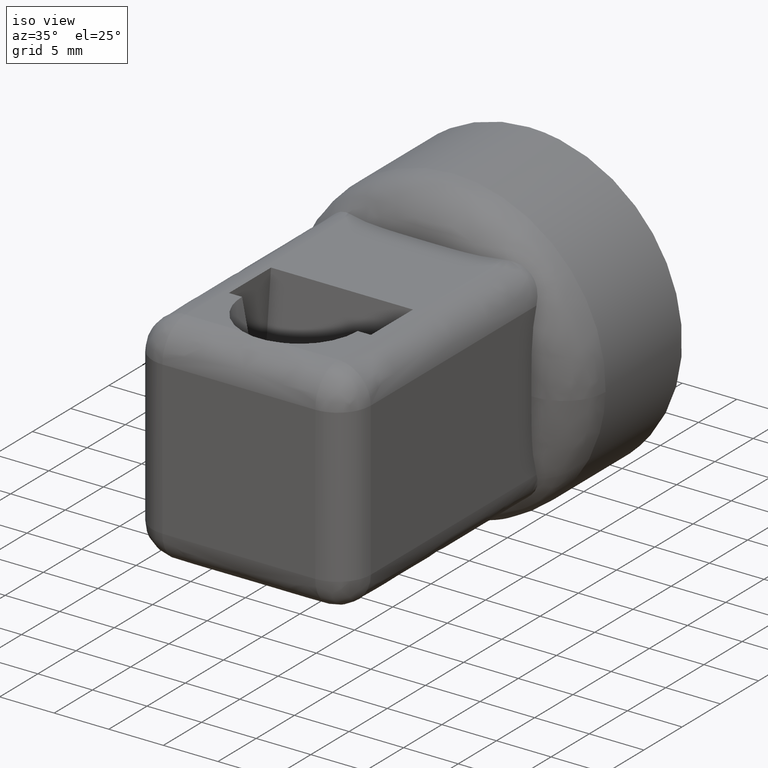
[diagram: clean part render]
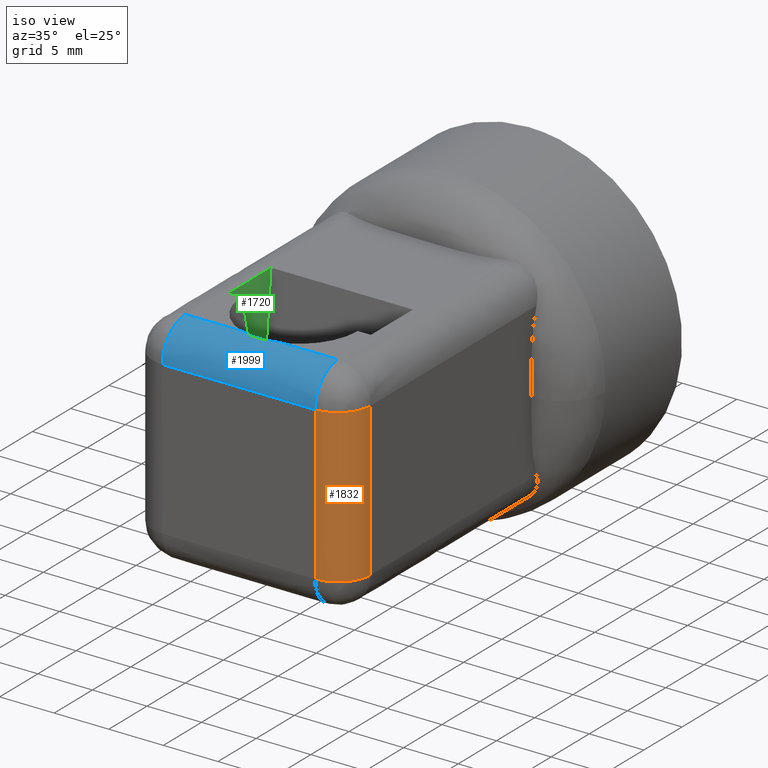
[diagram: same view with three faces highlighted in distinct colors, each labeled with its STEP entity id]
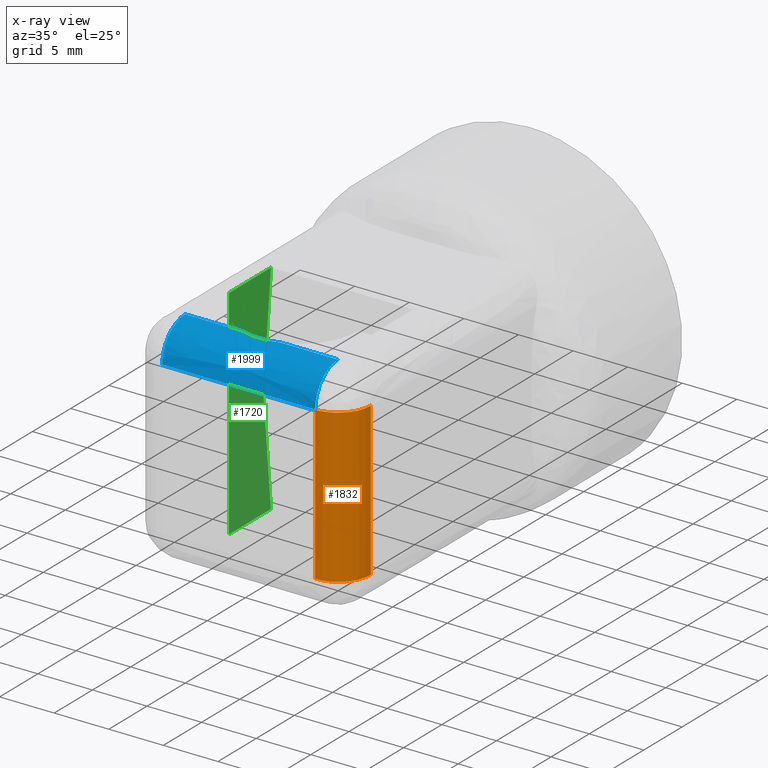
[diagram: x-ray of the same camera — body ghosted, the three highlighted faces saturated]
A machine part, iso view with three faces highlighted in distinct colors.
The next image is the same camera in x-ray (body ghosted, the three faces saturated) — at least one of them is partly hidden behind the body in this view.
Their STEP definitions:

[orange] entity #1832 — the highlighted face is a freeform B-spline surface patch.
#1770=CARTESIAN_POINT('',(6.869142312878472,-7.997146184664072,7.350000498723126));
#1771=CARTESIAN_POINT('',(6.869142312878472,-7.997146184664072,-7.358750499317053));
#1772=CARTESIAN_POINT('',(10.228181268351587,-8.143804992726487,7.350000498723125));
#1773=CARTESIAN_POINT('',(10.228181268351587,-8.143804992726487,-7.358750499317055));
#1774=CARTESIAN_POINT('',(9.992629214670265,-4.789827243787964,7.350000498723125));
#1775=CARTESIAN_POINT('',(9.992629214670265,-4.789827243787964,-7.358750499317052));
#1783=(BOUNDED_SURFACE()B_SPLINE_SURFACE(1,2,((#1770,#1772,#1774),(#1771,#1773,#1775)),.UNSPECIFIED.,.F.,.F.,.U.)B_SPLINE_SURFACE_WITH_KNOTS((2,2),(3,3),(0.0,14.708750998040180),(0.0,5.375227619525957),.UNSPECIFIED.)GEOMETRIC_REPRESENTATION_ITEM()RATIONAL_B_SPLINE_SURFACE(((1.0,0.664513898535122,0.996233561259061),(1.0,0.664513898535122,0.996233561259061)))REPRESENTATION_ITEM('')SURFACE());
#1784=CARTESIAN_POINT('',(7.000000332482120,-8.000001519918500,-7.000000474974610));
#1785=VERTEX_POINT('',#1784);
#1786=CARTESIAN_POINT('',(10.000000474974479,-5.000001519918531,-7.000000332482180));
#1787=VERTEX_POINT('',#1786);
#1788=CARTESIAN_POINT('',(7.000000332482120,-8.000001519918500,-7.000000474974610));
#1789=CARTESIAN_POINT('',(10.000000332482120,-8.000001519918511,-7.000000332482199));
#1790=CARTESIAN_POINT('',(10.000000474974479,-5.000001519918531,-7.000000332482180));
#1798=(BOUNDED_CURVE()B_SPLINE_CURVE(2,(#1788,#1789,#1790),.UNSPECIFIED.,.F.,.U.)CURVE()GEOMETRIC_REPRESENTATION_ITEM()QUASI_UNIFORM_CURVE()RATIONAL_B_SPLINE_CURVE((1.0,0.707106781186548,1.0))REPRESENTATION_ITEM(''));
#1799=EDGE_CURVE('',#1785,#1787,#1798,.T.);
#1800=ORIENTED_EDGE('',*,*,#1799,.T.);
#1801=CARTESIAN_POINT('',(10.000000474974501,-5.000001519918531,7.000000332482100));
#1802=VERTEX_POINT('',#1801);
#1803=CARTESIAN_POINT('',(10.000000474974501,-5.000001519918531,7.000000332482100));
#1804=CARTESIAN_POINT('',(10.000000474974479,-5.000001519918531,-7.000000332482180));
#1805=QUASI_UNIFORM_CURVE('',1,(#1803,#1804),.UNSPECIFIED.,.F.,.U.);
#1806=EDGE_CURVE('',#1802,#1787,#1805,.T.);
#1807=ORIENTED_EDGE('',*,*,#1806,.F.);
#1808=CARTESIAN_POINT('',(7.000000332482120,-8.000001519918500,7.000000474974400));
#1809=VERTEX_POINT('',#1808);
#1810=CARTESIAN_POINT('',(10.000000474974501,-5.000001519918531,7.000000332482100));
#1811=CARTESIAN_POINT('',(10.000000474974470,-6.242642248772858,7.000000332482100));
#1812=CARTESIAN_POINT('',(9.121320768155458,-7.121321913856825,7.000000332482100));
#1813=CARTESIAN_POINT('',(8.242641061336448,-8.000001578940793,7.000000332482100));
#1814=CARTESIAN_POINT('',(7.000000332482120,-8.000001519918500,7.000000474974400));
#1822=(BOUNDED_CURVE()B_SPLINE_CURVE(2,(#1810,#1811,#1812,#1813,#1814),.UNSPECIFIED.,.F.,.U.)B_SPLINE_CURVE_WITH_KNOTS((3,2,3),(0.0,0.500000000000000,1.0),.UNSPECIFIED.)CURVE()GEOMETRIC_REPRESENTATION_ITEM()RATIONAL_B_SPLINE_CURVE((1.0,0.923879527967165,1.0,0.923879527967165,1.0))REPRESENTATION_ITEM(''));
#1823=EDGE_CURVE('',#1802,#1809,#1822,.T.);
#1824=ORIENTED_EDGE('',*,*,#1823,.T.);
#1825=CARTESIAN_POINT('',(7.000000332482120,-8.000001519918500,-7.000000474974610));
#1826=CARTESIAN_POINT('',(7.000000332482120,-8.000001519918500,7.000000474974400));
#1827=QUASI_UNIFORM_CURVE('',1,(#1825,#1826),.UNSPECIFIED.,.F.,.U.);
#1828=EDGE_CURVE('',#1785,#1809,#1827,.T.);
#1829=ORIENTED_EDGE('',*,*,#1828,.F.);
#1830=EDGE_LOOP('',(#1800,#1807,#1824,#1829));
#1831=FACE_OUTER_BOUND('',#1830,.T.);
#1832=ADVANCED_FACE('',(#1831),#1783,.T.);

[blue] entity #1999 — the highlighted face is a freeform B-spline surface patch.
#1475=CARTESIAN_POINT('',(-1.757839455858930,-5.000001519918500,10.000000474974399));
#1476=VERTEX_POINT('',#1475);
#1477=CARTESIAN_POINT('',(1.757839455858930,-5.000001519918500,10.000000474974399));
#1478=VERTEX_POINT('',#1477);
#1479=CARTESIAN_POINT('',(-1.757839455858930,-5.000001519918500,10.000000474974399));
#1480=CARTESIAN_POINT('',(-1.473978451950759,-5.099797904111961,10.000000474974399));
#1481=CARTESIAN_POINT('',(-1.185028932537675,-5.173250342881901,9.995400432272698));
#1482=CARTESIAN_POINT('',(-0.744510742568819,-5.247081167455264,9.989910283393929));
#1483=CARTESIAN_POINT('',(-0.596479399558488,-5.265580783971751,9.988247765570549));
#1484=CARTESIAN_POINT('',(-0.372632577185761,-5.284128180370039,9.986521962363081));
#1485=CARTESIAN_POINT('',(-0.297575697439915,-5.288779040533688,9.986070991649457));
#1486=CARTESIAN_POINT('',(-0.147547025251131,-5.294942231735925,9.985468539362513));
#1487=CARTESIAN_POINT('',(-0.072714700397822,-5.296455632001472,9.985317034428045));
#1488=CARTESIAN_POINT('',(0.300552922847378,-5.296322213612041,9.985330282214063));
#1489=CARTESIAN_POINT('',(0.596330067630433,-5.271797177846917,9.988066644077676));
#1490=CARTESIAN_POINT('',(1.035753837996137,-5.198327742832195,9.993538479903828));
#1491=CARTESIAN_POINT('',(1.181516859405017,-5.167681489310600,9.995540776966221));
#1492=CARTESIAN_POINT('',(1.471561693254423,-5.093501671258464,9.998772889595420));
#1493=CARTESIAN_POINT('',(1.615925098823491,-5.049894035982002,10.000000474974410));
#1494=CARTESIAN_POINT('',(1.757839455858930,-5.000001519918500,10.000000474974399));
#1495=B_SPLINE_CURVE_WITH_KNOTS('',3,(#1479,#1480,#1481,#1482,#1483,#1484,#1485,#1486,#1487,#1488,#1489,#1490,#1491,#1492,#1493,#1494),.UNSPECIFIED.,.F.,.U.,(4,2,2,2,2,2,2,4),(0.0,0.250000000000000,0.375000000000000,0.437500000000000,0.500000000000000,0.750000000000000,0.875000000000000,1.0),.UNSPECIFIED.);
#1496=EDGE_CURVE('',#1476,#1478,#1495,.T.);
#1808=CARTESIAN_POINT('',(7.000000332482120,-8.000001519918500,7.000000474974400));
#1809=VERTEX_POINT('',#1808);
#1857=CARTESIAN_POINT('',(7.000000332482120,-5.000001519918531,10.000000474974399));
#1858=VERTEX_POINT('',#1857);
#1872=CARTESIAN_POINT('',(7.000000332482120,-5.000001519918531,10.000000474974399));
#1873=CARTESIAN_POINT('',(7.000000332482119,-8.000001519918500,10.000000474974401));
#1874=CARTESIAN_POINT('',(7.000000332482120,-8.000001519918500,7.000000474974400));
#1882=(BOUNDED_CURVE()B_SPLINE_CURVE(2,(#1872,#1873,#1874),.UNSPECIFIED.,.F.,.U.)CURVE()GEOMETRIC_REPRESENTATION_ITEM()QUASI_UNIFORM_CURVE()RATIONAL_B_SPLINE_CURVE((1.0,0.707106781186548,1.0))REPRESENTATION_ITEM(''));
#1883=EDGE_CURVE('',#1858,#1809,#1882,.T.);
#1947=CARTESIAN_POINT('',(-7.350000349106268,-7.998973494845171,6.921469630050780));
#1948=CARTESIAN_POINT('',(7.358750349521830,-7.998973494845171,6.921469630050780));
#1949=CARTESIAN_POINT('',(-7.350000349106268,-8.085478308530439,10.224955186467344));
#1950=CARTESIAN_POINT('',(7.358750349521831,-8.085478308530439,10.224955186467344));
#1951=CARTESIAN_POINT('',(-7.350000349106268,-4.789041013679104,9.992573893423344));
#1952=CARTESIAN_POINT('',(7.358750349521830,-4.789041013679104,9.992573893423344));
#1960=(BOUNDED_SURFACE()B_SPLINE_SURFACE(1,2,((#1947,#1949,#1951),(#1948,#1950,#1952)),.UNSPECIFIED.,.F.,.F.,.U.)B_SPLINE_SURFACE_WITH_KNOTS((2,2),(3,3),(0.0,14.708750698628100),(0.0,5.313427367344773),.UNSPECIFIED.)GEOMETRIC_REPRESENTATION_ITEM()RATIONAL_B_SPLINE_SURFACE(((1.0,0.670944202448334,0.996392689567979),(1.0,0.670944202448334,0.996392689567979)))REPRESENTATION_ITEM('')SURFACE());
#1961=ORIENTED_EDGE('',*,*,#1496,.F.);
#1962=CARTESIAN_POINT('',(-7.000000332482160,-5.000001519918531,10.000000474974399));
#1963=VERTEX_POINT('',#1962);
#1964=CARTESIAN_POINT('',(-7.000000332482160,-5.000001519918531,10.000000474974399));
#1965=CARTESIAN_POINT('',(-1.757839455858930,-5.000001519918500,10.000000474974399));
#1966=QUASI_UNIFORM_CURVE('',1,(#1964,#1965),.UNSPECIFIED.,.F.,.U.);
#1967=EDGE_CURVE('',#1963,#1476,#1966,.T.);
#1968=ORIENTED_EDGE('',*,*,#1967,.F.);
#1969=CARTESIAN_POINT('',(-7.000000332482160,-8.000001519918500,7.000000474974400));
#1970=VERTEX_POINT('',#1969);
#1971=CARTESIAN_POINT('',(-7.000000332482160,-5.000001519918531,10.000000474974399));
#1972=CARTESIAN_POINT('',(-7.000000332482160,-6.242642207037830,10.000000474974451));
#1973=CARTESIAN_POINT('',(-7.000000332482160,-7.121321863478190,9.121320818534077));
#1974=CARTESIAN_POINT('',(-7.000000332482160,-8.000001519918531,8.242641162093721));
#1975=CARTESIAN_POINT('',(-7.000000332482160,-8.000001519918500,7.000000474974400));
#1983=(BOUNDED_CURVE()B_SPLINE_CURVE(2,(#1971,#1972,#1973,#1974,#1975),.UNSPECIFIED.,.F.,.U.)B_SPLINE_CURVE_WITH_KNOTS((3,2,3),(0.0,0.500000000000000,1.0),.UNSPECIFIED.)CURVE()GEOMETRIC_REPRESENTATION_ITEM()RATIONAL_B_SPLINE_CURVE((1.0,0.923879532511285,1.0,0.923879532511285,1.0))REPRESENTATION_ITEM(''));
#1984=EDGE_CURVE('',#1963,#1970,#1983,.T.);
#1985=ORIENTED_EDGE('',*,*,#1984,.T.);
#1986=CARTESIAN_POINT('',(7.000000332482120,-8.000001519918500,7.000000474974400));
#1987=CARTESIAN_POINT('',(-7.000000332482160,-8.000001519918500,7.000000474974400));
#1988=QUASI_UNIFORM_CURVE('',1,(#1986,#1987),.UNSPECIFIED.,.F.,.U.);
#1989=EDGE_CURVE('',#1809,#1970,#1988,.T.);
#1990=ORIENTED_EDGE('',*,*,#1989,.F.);
#1991=ORIENTED_EDGE('',*,*,#1883,.F.);
#1992=CARTESIAN_POINT('',(1.757839455858930,-5.000001519918500,10.000000474974399));
#1993=CARTESIAN_POINT('',(7.000000332482120,-5.000001519918531,10.000000474974399));
#1994=QUASI_UNIFORM_CURVE('',1,(#1992,#1993),.UNSPECIFIED.,.F.,.U.);
#1995=EDGE_CURVE('',#1478,#1858,#1994,.T.);
#1996=ORIENTED_EDGE('',*,*,#1995,.F.);
#1997=EDGE_LOOP('',(#1961,#1968,#1985,#1990,#1991,#1996));
#1998=FACE_OUTER_BOUND('',#1997,.T.);
#1999=ADVANCED_FACE('',(#1998),#1960,.T.);

[green] entity #1720 — the highlighted face is a freeform B-spline surface patch.
#1642=CARTESIAN_POINT('',(-6.500000308733430,4.500000213738500,-5.510729E-016));
#1643=VERTEX_POINT('',#1642);
#1649=CARTESIAN_POINT('',(-6.500000308733430,5.500000261236011,-10.000000474974399));
#1650=VERTEX_POINT('',#1649);
#1651=CARTESIAN_POINT('',(-6.500000308733430,4.500000213738500,-5.510729E-016));
#1652=CARTESIAN_POINT('',(-6.500000308733430,5.500000261236011,-10.000000474974399));
#1653=QUASI_UNIFORM_CURVE('',1,(#1651,#1652),.UNSPECIFIED.,.F.,.U.);
#1654=EDGE_CURVE('',#1643,#1650,#1653,.T.);
#1676=CARTESIAN_POINT('',(-6.500000308733430,5.500000261236011,10.000000474974399));
#1677=VERTEX_POINT('',#1676);
#1683=CARTESIAN_POINT('',(-6.500000308733430,4.500000213738500,-5.510729E-016));
#1684=CARTESIAN_POINT('',(-6.500000308733430,5.500000261236011,10.000000474974399));
#1685=QUASI_UNIFORM_CURVE('',1,(#1683,#1684),.UNSPECIFIED.,.F.,.U.);
#1686=EDGE_CURVE('',#1643,#1677,#1685,.T.);
#1692=CARTESIAN_POINT('',(-6.500000308733460,-0.274725002388671,-10.999000036715220));
#1693=CARTESIAN_POINT('',(-6.500000308733460,5.774725411146185,-10.999000036715220));
#1694=CARTESIAN_POINT('',(-6.500000308733460,-0.274725002388671,10.998999500273190));
#1695=CARTESIAN_POINT('',(-6.500000308733460,5.774725411146185,10.998999500273190));
#1696=B_SPLINE_SURFACE_WITH_KNOTS('',1,1,((#1692,#1694),(#1693,#1695)),.UNSPECIFIED.,.F.,.F.,.U.,(2,2),(2,2),(0.0,6.049450413534856),(0.0,21.997999536988409),.UNSPECIFIED.);
#1697=CARTESIAN_POINT('',(-6.500000308733460,0.0,10.000000474974399));
#1698=VERTEX_POINT('',#1697);
#1699=CARTESIAN_POINT('',(-6.500000308733460,0.0,10.000000474974399));
#1700=CARTESIAN_POINT('',(-6.500000308733430,5.500000261236011,10.000000474974399));
#1701=QUASI_UNIFORM_CURVE('',1,(#1699,#1700),.UNSPECIFIED.,.F.,.U.);
#1702=EDGE_CURVE('',#1698,#1677,#1701,.T.);
#1703=ORIENTED_EDGE('',*,*,#1702,.F.);
#1704=CARTESIAN_POINT('',(-6.500000308733460,0.0,-10.000000474974600));
#1705=VERTEX_POINT('',#1704);
#1706=CARTESIAN_POINT('',(-6.500000308733460,0.0,-10.000000474974600));
#1707=CARTESIAN_POINT('',(-6.500000308733460,0.0,10.000000474974399));
#1708=QUASI_UNIFORM_CURVE('',1,(#1706,#1707),.UNSPECIFIED.,.F.,.U.);
#1709=EDGE_CURVE('',#1705,#1698,#1708,.T.);
#1710=ORIENTED_EDGE('',*,*,#1709,.F.);
#1711=CARTESIAN_POINT('',(-6.500000308733460,0.0,-10.000000474974600));
#1712=CARTESIAN_POINT('',(-6.500000308733430,5.500000261236011,-10.000000474974399));
#1713=QUASI_UNIFORM_CURVE('',1,(#1711,#1712),.UNSPECIFIED.,.F.,.U.);
#1714=EDGE_CURVE('',#1705,#1650,#1713,.T.);
#1715=ORIENTED_EDGE('',*,*,#1714,.T.);
#1716=ORIENTED_EDGE('',*,*,#1654,.F.);
#1717=ORIENTED_EDGE('',*,*,#1686,.T.);
#1718=EDGE_LOOP('',(#1703,#1710,#1715,#1716,#1717));
#1719=FACE_OUTER_BOUND('',#1718,.T.);
#1720=ADVANCED_FACE('',(#1719),#1696,.T.);